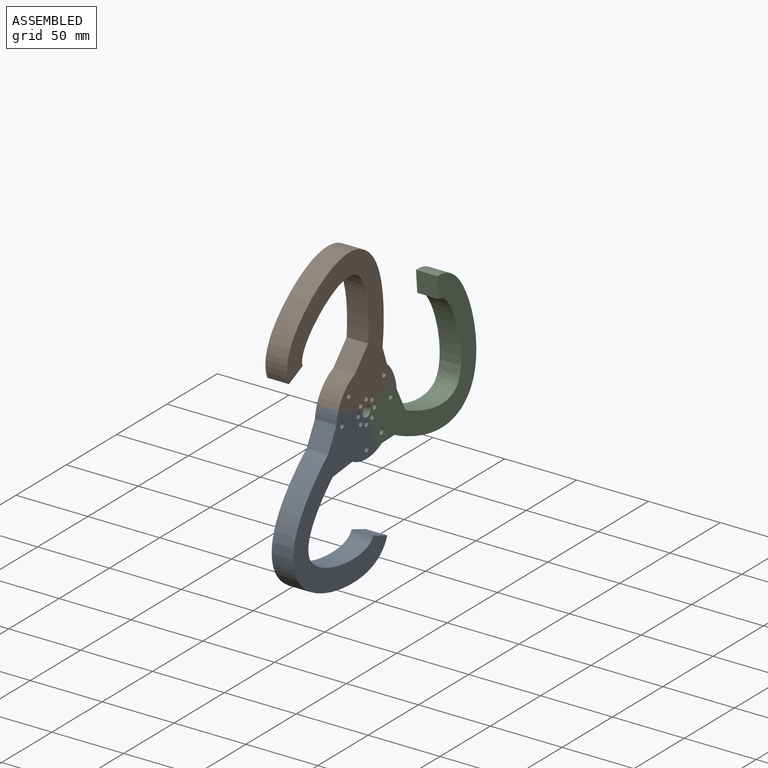
[diagram: assembled view]
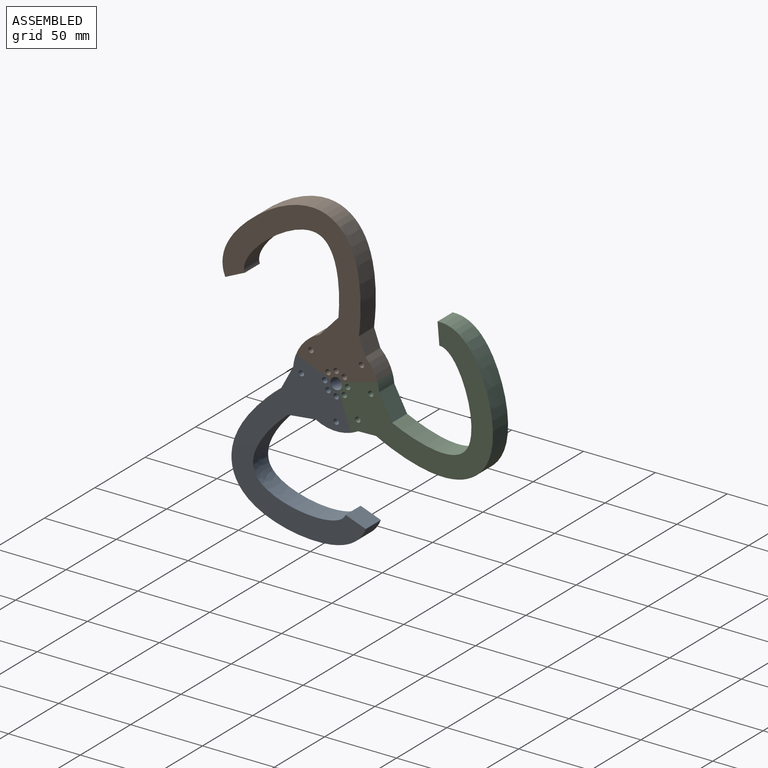
[diagram: assembled view, second angle]
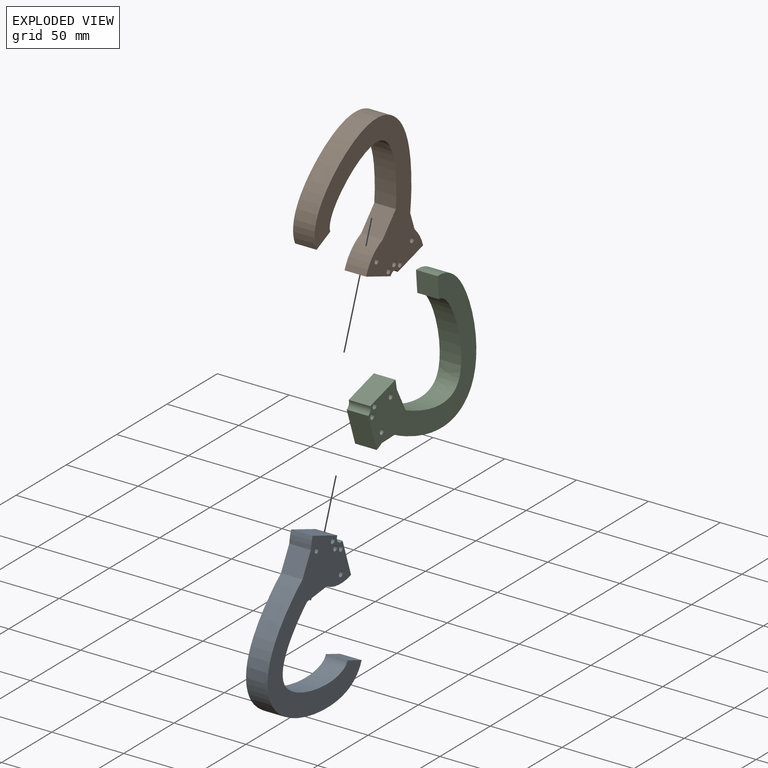
[diagram: exploded view]
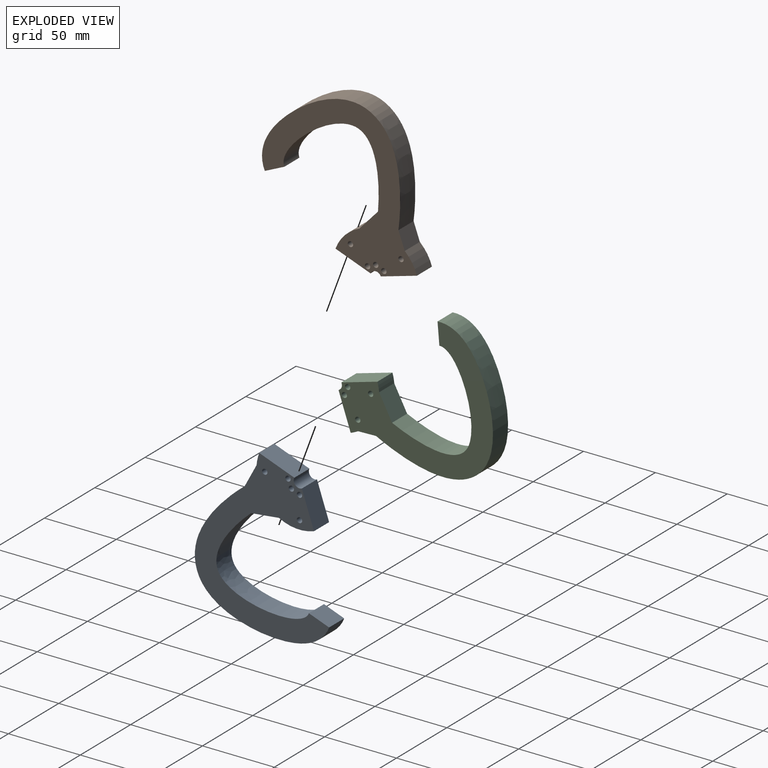
[diagram: exploded view, second angle]
ASSEMBLY  parts=3 mates=2
PART A: 17 faces, bbox 15x93.4x113.7 mm
  f0: extruded ~93.33x90.08mm, area 2751mm2, adj f2,f3,f4,f15
  f1: extruded ~64.31x59.34mm, area 1823.2mm2, adj f2,f3,f4,f16
  f2: plane 113.7x93.44mm, normal (-1,0,0), area 3536.2mm2, adj f0,f1,f4,f5,f6,f7,f8,f9
  f3: plane 113.7x93.44mm, normal (1,0,0), area 3537.1mm2, adj f0,f1,f4,f5,f6,f7,f8,f9
  f4: plane 15x14.07mm, normal (0,0.35,0.94), area 225mm2, adj f0,f1,f2,f3
  f5: cylinder r=30mm len=15mm, axis (-1,0,0), area 126.6mm2, adj f2,f3,f6,f15
  f6: plane 24.38x15mm, normal (0,0.35,0.94), area 390.2mm2, adj f2,f3,f5,f14
  f7: cylinder r=30mm len=24.34mm, axis (-1,0,0), area 377.1mm2, adj f2,f3,f8,f16
  f8: plane 24.61x15mm, normal (0,0.95,0.32), area 390.2mm2, adj f2,f3,f7,f14
  f9: cylinder r=1.85mm len=15mm, axis (-1,0,0), area 174mm2, adj f2,f3
  f10: cylinder r=1.85mm len=15mm, axis (-1,0,0), area 174mm2, adj f2,f3
  f11: cylinder r=1.85mm len=15mm, axis (-1,0,0), area 174mm2, adj f2,f3
  f12: cylinder r=1.85mm len=15mm, axis (-1,0,0), area 174mm2, adj f2,f3
  f13: cylinder r=1.85mm len=15mm, axis (-1,0,0), area 174mm2, adj f2,f3
  f14: cylinder r=4mm len=15mm, axis (-1,0,0), area 146.5mm2, adj f2,f3,f6,f8
  f15: plane 15.39x15mm, normal (0,-0.88,0.47), area 262mm2, adj f0,f2,f3,f5
  f16: plane 19.38x15mm, normal (0,0.11,-0.99), area 292.6mm2, adj f1,f2,f3,f7
PART B: 17 faces, bbox 15x107.8x104.7 mm
  f0: extruded ~96.13x72.26mm, area 2781.3mm2, adj f1,f2,f4,f16
  f1: plane 107.77x104.69mm, normal (-1,0,0), area 3575.5mm2, adj f0,f3,f4,f5,f6,f7,f8,f9
  f2: plane 107.77x104.69mm, normal (1,0,0), area 3575.4mm2, adj f0,f3,f4,f5,f6,f7,f8,f9
  f3: plane 15x14.25mm, normal (0,-0.74,0.68), area 289.8mm2, adj f1,f2,f5,f9
  f4: plane 15x13.63mm, normal (0,0.42,-0.91), area 225mm2, adj f0,f1,f2,f5
  f5: extruded ~66.13x49.36mm, area 1856.9mm2, adj f1,f2,f3,f4
  f6: cylinder r=30mm len=15mm, axis (-1,0,0), area 239.3mm2, adj f1,f2,f8,f16
  f7: cylinder r=4mm len=15mm, axis (-1,0,0), area 135.3mm2, adj f1,f2,f8,f15
  f8: plane 25.05x15mm, normal (0,0.27,-0.96), area 390.7mm2, adj f1,f2,f6,f7
  f9: cylinder r=30mm len=16.96mm, axis (-1,0,0), area 365.4mm2, adj f1,f2,f3,f15
  f10: cylinder r=1.85mm len=15mm, axis (-1,0,0), area 174mm2, adj f1,f2
  f11: cylinder r=1.83mm len=15mm, axis (-1,0,0), area 172.7mm2, adj f1,f2
  f12: cylinder r=1.85mm len=15mm, axis (-1,0,0), area 174mm2, adj f1,f2
  f13: cylinder r=1.85mm len=15mm, axis (-1,0,0), area 174mm2, adj f1,f2
  f14: cylinder r=1.85mm len=15mm, axis (-1,0,0), area 174mm2, adj f1,f2
  f15: plane 24.38x15mm, normal (0,-0.35,-0.94), area 390.2mm2, adj f1,f2,f7,f9
  f16: plane 15x11.94mm, normal (0,0.94,0.34), area 190.7mm2, adj f0,f1,f2,f6
PART C: 16 faces, bbox 15x107.5x97 mm
  f0: plane 107.49x96.98mm, normal (-1,0,0), area 3175.1mm2, adj f2,f3,f4,f5,f6,f7,f8,f9
  f1: plane 107.49x96.98mm, normal (1,0,0), area 3175.1mm2, adj f2,f3,f4,f5,f6,f7,f8,f9
  f2: plane 16.78x15mm, normal (0,0.88,0.47), area 285.3mm2, adj f0,f1,f3,f13
  f3: extruded ~66.87x55.23mm, area 1868.5mm2, adj f0,f1,f2,f5
  f4: extruded ~96.78x81.35mm, area 2774.7mm2, adj f0,f1,f5,f15
  f5: plane 15x14.95mm, normal (0,-1,-0.08), area 225mm2, adj f0,f1,f3,f4
  f6: cylinder r=30mm len=15mm, axis (-1,0,0), area 84.3mm2, adj f0,f1,f9,f15
  f7: plane 25.05x15mm, normal (0,-0.27,0.96), area 390.7mm2, adj f0,f1,f8,f13
  f8: cylinder r=4mm len=15mm, axis (-1,0,0), area 95.2mm2, adj f0,f1,f7,f9
  f9: plane 24.61x15mm, normal (0,-0.95,-0.32), area 390.2mm2, adj f0,f1,f6,f8
  f10: cylinder r=1.85mm len=15mm, axis (-1,0,0), area 174mm2, adj f0,f1
  f11: cylinder r=1.85mm len=15mm, axis (-1,0,0), area 174mm2, adj f0,f1
  f12: cylinder r=1.85mm len=15mm, axis (-1,0,0), area 174mm2, adj f0,f1
  f13: cylinder r=30mm len=15mm, axis (-1,0,0), area 96.8mm2, adj f0,f1,f2,f7
  f14: cylinder r=1.85mm len=15mm, axis (-1,0,0), area 174mm2, adj f0,f1
  f15: plane 15x12.58mm, normal (0,0.03,-1), area 188.7mm2, adj f0,f1,f4,f6
PLACE A t=(0,-17.48,-9.13)mm
PLACE B t=(0,-1.49,-0.95)mm
PLACE C at identity
MATE fastened A.f8 <-> C.f9  axis (0,0.95,0.32) through (0,4.39,-16.9)mm
MATE fastened B.f15 <-> A.f6  axis (0,-0.35,-0.94) through (7.5,-17.29,5.29)mm
